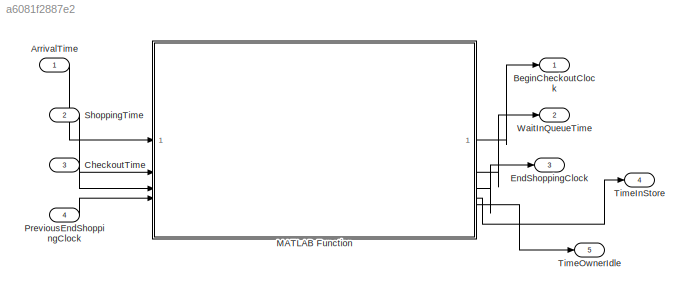
MODEL slx_a6081f2887e2
KIND model
CONFIG AbsTol = auto
CONFIG EnableMultiTasking = off
CONFIG FixedStep = auto
CONFIG MaxStep = auto
CONFIG MinStep = auto
CONFIG RelTol = 1e-3
CONFIG SampleTimeConstraint = Unconstrained
CONFIG SolverName = VariableStepAuto
CONFIG StartTime = 0.0
CONFIG StopTime = 10.0
BLOCK [Inport] ArrivalTime
BLOCK [Outport] BeginCheckoutClock
BLOCK [Inport] CheckoutTime
  Port = 3
BLOCK [Outport] EndShoppingClock
  Port = 3
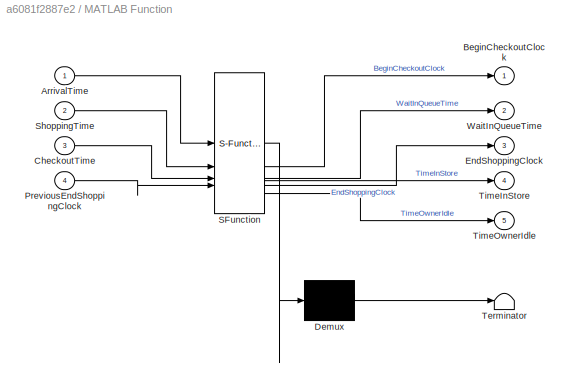
BLOCK [SubSystem] MATLAB Function
  ErrorFcn = Stateflow.Translate.translate
  PermitHierarchicalResolution = ExplicitOnly
  SFBlockType = MATLAB Function
  TreatAsAtomicUnit = on
BLOCK [Demux] MATLAB Function/ Demux 
  Outputs = 1
BLOCK [S-Function] MATLAB Function/ SFunction 
  EnableBusSupport = off
  FunctionName = sf_sfun
  PortCounts = [4 6]
  SFcnIsStateOwnerBlock = off
  SFunctionDeploymentMode = off
  Tag = Stateflow S-Function 2
BLOCK [Terminator] MATLAB Function/ Terminator 
BLOCK [Inport] MATLAB Function/ArrivalTime
BLOCK [Outport] MATLAB Function/BeginCheckoutClock
BLOCK [Inport] MATLAB Function/CheckoutTime
  Port = 3
BLOCK [Outport] MATLAB Function/EndShoppingClock
  Port = 3
BLOCK [Inport] MATLAB Function/PreviousEndShoppingClock
  Port = 4
BLOCK [Inport] MATLAB Function/ShoppingTime
  Port = 2
BLOCK [Outport] MATLAB Function/TimeInStore
  Port = 4
BLOCK [Outport] MATLAB Function/TimeOwnerIdle
  Port = 5
BLOCK [Outport] MATLAB Function/WaitInQueueTime
  Port = 2
BLOCK [Inport] PreviousEndShoppingClock
  Port = 4
BLOCK [Inport] ShoppingTime
  Port = 2
BLOCK [Outport] TimeInStore
  Port = 4
BLOCK [Outport] TimeOwnerIdle
  Port = 5
BLOCK [Outport] WaitInQueueTime
  Port = 2
LINE ArrivalTime:1 -> MATLAB Function:1
LINE CheckoutTime:1 -> MATLAB Function:3
LINE MATLAB Function:1 -> BeginCheckoutClock:1
LINE MATLAB Function:2 -> WaitInQueueTime:1
LINE MATLAB Function:3 -> EndShoppingClock:1
LINE MATLAB Function:4 -> TimeInStore:1
LINE MATLAB Function:5 -> TimeOwnerIdle:1
LINE PreviousEndShoppingClock:1 -> MATLAB Function:4
LINE ShoppingTime:1 -> MATLAB Function:2
CHART MATLAB Function states=1 transitions=1
  STATE_LABEL 'eML_blk_kernel()'
  STATE_LABEL 'SCRIPT:\nfunction [BeginCheckoutClock, WaitInQueueTime, EndShoppingClock, TimeInStore, TimeOwnerIdle] = CalcTimes(ArrivalTime, ShoppingTime, CheckoutTime, PreviousEndShoppingClock)\n    BeginCheckoutClock = ArrivalTime + ShoppingTime;\n    \n    WaitInQueueTime = max(0, PreviousEndShoppingClock - BeginCheckoutClock);\n    \n    EndShoppingClock = BeginCheckoutClock + WaitInQueueTime + CheckoutTime;\n    ...<+135ch>'
CHART  states=0 transitions=0
